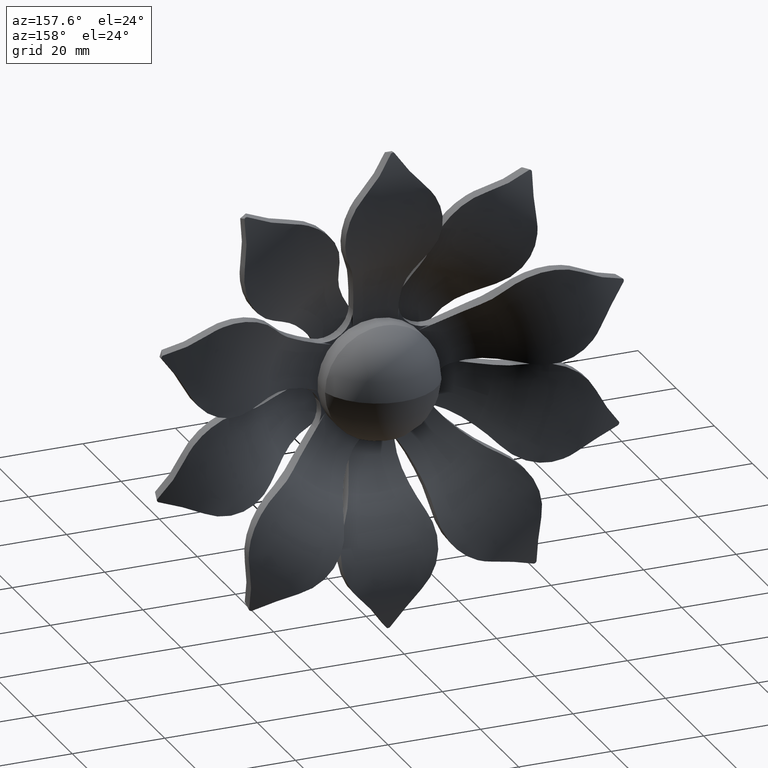
[diagram: clean part render]
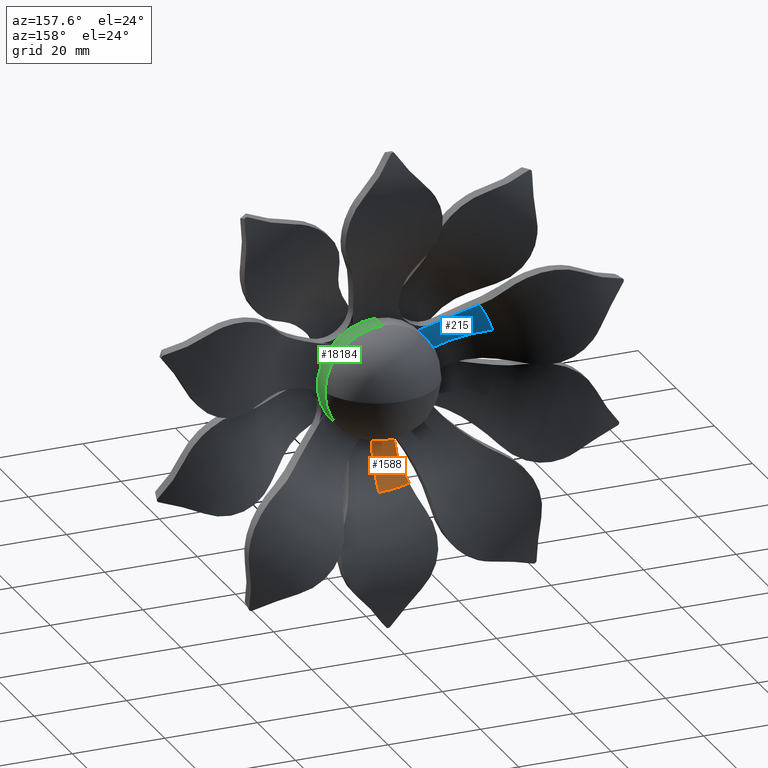
[diagram: same view with three faces highlighted in distinct colors, each labeled with its STEP entity id]
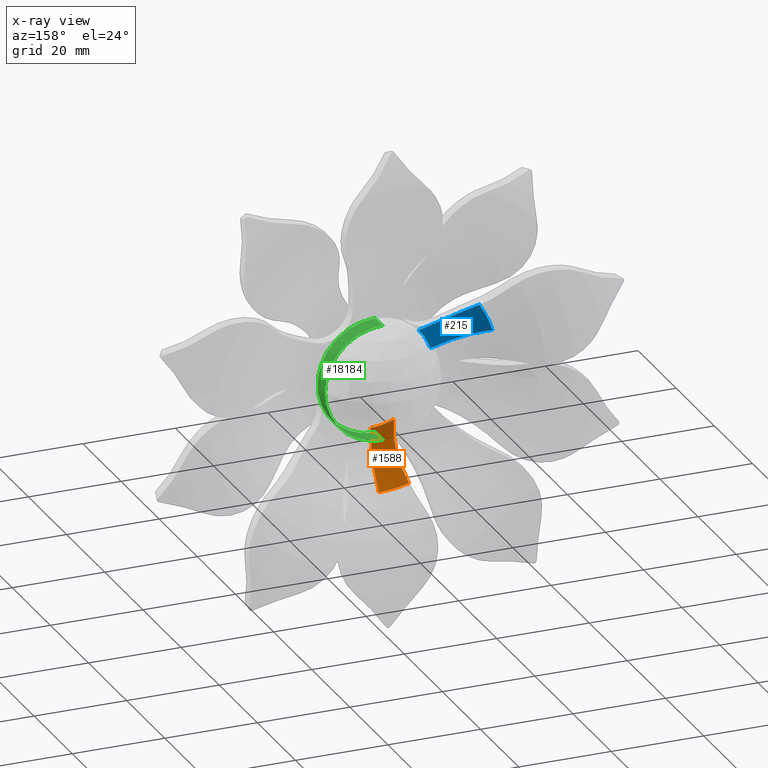
[diagram: x-ray of the same camera — body ghosted, the three highlighted faces saturated]
A machine part, auxiliary view with three faces highlighted in distinct colors.
The next image is the same camera in x-ray (body ghosted, the three faces saturated) — at least one of them is partly hidden behind the body in this view.
Their STEP definitions:

[orange] entity #1588 — the highlighted toroidal blend (fillet) surface has major radius 12.5 mm and minor (blend) radius 20 mm.
#3 = CARTESIAN_POINT ( 'NONE',  ( -4.911103334680630539, 2.701758379813187450, -15.18677292097259546 ) ) ;
#399 = DIRECTION ( 'NONE',  ( -0.000000000000000000, 1.000000000000000000, -0.000000000000000000 ) ) ;
#563 = VERTEX_POINT ( 'NONE', #10749 ) ;
#720 = DIRECTION ( 'NONE',  ( -0.000000000000000000, 1.000000000000000000, -0.000000000000000000 ) ) ;
#883 = CARTESIAN_POINT ( 'NONE',  ( 3.038777920609144218E-15, 6.639999999999997016, -24.81350478133662918 ) ) ;
#999 = CARTESIAN_POINT ( 'NONE',  ( 0.000000000000000000, 2.399999999999999467, 0.000000000000000000 ) ) ;
#1224 = CARTESIAN_POINT ( 'NONE',  ( -4.911756781227342827, 2.423084673537632128, -12.70974521857942108 ) ) ;
#1326 = EDGE_CURVE ( 'NONE', #13480, #563, #18292, .T. ) ;
#1588 = ADVANCED_FACE ( 'NONE', ( #18981 ), #8486, .F. ) ;
#1797 = EDGE_CURVE ( 'NONE', #10768, #15857, #8933, .T. ) ;
#1903 = CARTESIAN_POINT ( 'NONE',  ( -5.005182174680575358, 3.022617724912351367, -16.78765008031462003 ) ) ;
#2042 = B_SPLINE_CURVE_WITH_KNOTS ( 'NONE', 3,
 ( #10883, #16811, #6348, #7731, #3261, #9238, #16616, #1903, #9310, #9107 ),
 .UNSPECIFIED., .F., .F.,
 ( 4, 2, 2, 2, 4 ),
 ( 3.209145312509394975E-07, 0.004911106255757290498, 0.006138802591063802563, 0.007366498926370314629, 0.009821891596983347433 ),
 .UNSPECIFIED. ) ;
#3261 = CARTESIAN_POINT ( 'NONE',  ( -5.319688503122857348, 3.791603364436038515, -19.11510234346955883 ) ) ;
#3639 = AXIS2_PLACEMENT_3D ( 'NONE', #10609, #720, #18224 ) ;
#3730 = VERTEX_POINT ( 'NONE', #3 ) ;
#3844 = ORIENTED_EDGE ( 'NONE', *, *, #18356, .T. ) ;
#5596 = AXIS2_PLACEMENT_3D ( 'NONE', #6337, #399, #10870 ) ;
#6337 = CARTESIAN_POINT ( 'NONE',  ( 0.000000000000000000, 22.39999999999999858, 0.000000000000000000 ) ) ;
#6348 = CARTESIAN_POINT ( 'NONE',  ( -5.753159581806207790, 4.779073220137338929, -21.34060581880919472 ) ) ;
#7648 = ORIENTED_EDGE ( 'NONE', *, *, #1326, .F. ) ;
#7731 = CARTESIAN_POINT ( 'NONE',  ( -5.387375776556142526, 3.947264695546024882, -19.49360181070592901 ) ) ;
#8077 = B_SPLINE_CURVE_WITH_KNOTS ( 'NONE', 3,
 ( #17667, #16002, #12999, #1224, #10072, #17486 ),
 .UNSPECIFIED., .F., .F.,
 ( 4, 2, 4 ),
 ( 0.009821891596983347433, 0.01167983275379592262, 0.01353777391060849780 ),
 .UNSPECIFIED. ) ;
#8249 = AXIS2_PLACEMENT_3D ( 'NONE', #999, #11409, #14478 ) ;
#8486 = TOROIDAL_SURFACE ( 'NONE', #5596, 12.50000000000000000, 20.00000000000000000 ) ;
#8865 = DIRECTION ( 'NONE',  ( 1.224646799147353454E-16, 0.000000000000000000, -1.000000000000000000 ) ) ;
#8933 = CIRCLE ( 'NONE', #3639, 24.81350478133662918 ) ;
#9107 = CARTESIAN_POINT ( 'NONE',  ( -4.911103334680630539, 2.701758379813187450, -15.18677292097259546 ) ) ;
#9238 = CARTESIAN_POINT ( 'NONE',  ( -5.197944189174233287, 3.505085547573375315, -18.34695080249383281 ) ) ;
#9310 = CARTESIAN_POINT ( 'NONE',  ( -4.942098189964657884, 2.838296876270538505, -15.99345409425053788 ) ) ;
#9386 = ORIENTED_EDGE ( 'NONE', *, *, #18271, .T. ) ;
#9849 = CARTESIAN_POINT ( 'NONE',  ( -6.567353473104922124, 6.640000000000001457, -23.92864158059776969 ) ) ;
#9981 = AXIS2_PLACEMENT_3D ( 'NONE', #10578, #17854, #8865 ) ;
#10072 = CARTESIAN_POINT ( 'NONE',  ( -4.946019388681788698, 2.399999999999995914, -12.08216103413071174 ) ) ;
#10578 = CARTESIAN_POINT ( 'NONE',  ( 1.530808498934191521E-15, 22.39999999999999858, -12.50000000000000000 ) ) ;
#10609 = CARTESIAN_POINT ( 'NONE',  ( 0.000000000000000000, 6.639999999999997016, 0.000000000000000000 ) ) ;
#10749 = CARTESIAN_POINT ( 'NONE',  ( -4.999999999999994671, 2.399999999999999911, -11.45643923738959380 ) ) ;
#10768 = VERTEX_POINT ( 'NONE', #883 ) ;
#10870 = DIRECTION ( 'NONE',  ( 0.000000000000000000, 0.000000000000000000, 1.000000000000000000 ) ) ;
#10883 = CARTESIAN_POINT ( 'NONE',  ( -6.567353473104922124, 6.640000000000001457, -23.92864158059776969 ) ) ;
#11409 = DIRECTION ( 'NONE',  ( -0.000000000000000000, 1.000000000000000000, -0.000000000000000000 ) ) ;
#12808 = EDGE_CURVE ( 'NONE', #15857, #3730, #2042, .T. ) ;
#12999 = CARTESIAN_POINT ( 'NONE',  ( -4.882576289804482883, 2.522551089253362466, -13.95881423534150478 ) ) ;
#13247 = EDGE_LOOP ( 'NONE', ( #7648, #3844, #16984, #19312, #9386 ) ) ;
#13480 = VERTEX_POINT ( 'NONE', #17353 ) ;
#14478 = DIRECTION ( 'NONE',  ( 0.000000000000000000, 0.000000000000000000, 1.000000000000000000 ) ) ;
#15857 = VERTEX_POINT ( 'NONE', #9849 ) ;
#16002 = CARTESIAN_POINT ( 'NONE',  ( -4.887650215360499928, 2.598442728881441788, -14.57637517473970767 ) ) ;
#16616 = CARTESIAN_POINT ( 'NONE',  ( -5.144199173691119675, 3.374975286415087705, -17.95955191458172351 ) ) ;
#16811 = CARTESIAN_POINT ( 'NONE',  ( -6.135746329555230361, 5.619847176975611980, -22.69312618471508358 ) ) ;
#16984 = ORIENTED_EDGE ( 'NONE', *, *, #1797, .T. ) ;
#17353 = CARTESIAN_POINT ( 'NONE',  ( 2.284793209771668560E-15, 2.399999999999999467, -12.49999999999999822 ) ) ;
#17486 = CARTESIAN_POINT ( 'NONE',  ( -4.999999999999994671, 2.399999999999999911, -11.45643923738959380 ) ) ;
#17667 = CARTESIAN_POINT ( 'NONE',  ( -4.911103334680630539, 2.701758379813187450, -15.18677292097259546 ) ) ;
#17854 = DIRECTION ( 'NONE',  ( 1.000000000000000000, 0.000000000000000000, 1.224646799147353207E-16 ) ) ;
#18224 = DIRECTION ( 'NONE',  ( 0.000000000000000000, 0.000000000000000000, 1.000000000000000000 ) ) ;
#18271 = EDGE_CURVE ( 'NONE', #3730, #563, #8077, .T. ) ;
#18292 = CIRCLE ( 'NONE', #8249, 12.49999999999999645 ) ;
#18356 = EDGE_CURVE ( 'NONE', #13480, #10768, #18706, .T. ) ;
#18706 = CIRCLE ( 'NONE', #9981, 20.00000000000000000 ) ;
#18981 = FACE_OUTER_BOUND ( 'NONE', #13247, .T. ) ;
#19312 = ORIENTED_EDGE ( 'NONE', *, *, #12808, .T. ) ;

[blue] entity #215 — the highlighted toroidal blend (fillet) surface has major radius 12.5 mm and minor (blend) radius 20 mm.
#215 = ADVANCED_FACE ( 'NONE', ( #6854 ), #3630, .F. ) ;
#941 = VERTEX_POINT ( 'NONE', #11187 ) ;
#1308 = EDGE_CURVE ( 'NONE', #4872, #18852, #4058, .T. ) ;
#1324 = CARTESIAN_POINT ( 'NONE',  ( -7.347315653655857481, 2.399999999999999467, 10.11271242968688355 ) ) ;
#1974 = DIRECTION ( 'NONE',  ( 0.5877852522924685852, 0.000000000000000000, -0.8090169943749507819 ) ) ;
#2117 = AXIS2_PLACEMENT_3D ( 'NONE', #11330, #10022, #11398 ) ;
#2128 = EDGE_CURVE ( 'NONE', #4872, #17229, #4275, .T. ) ;
#2330 = CARTESIAN_POINT ( 'NONE',  ( -3.496906091626370561, 2.423084673537631240, 13.16945807485947917 ) ) ;
#3132 = CARTESIAN_POINT ( 'NONE',  ( -6.394615199206397982, 3.374975286415085041, 17.55326711940653439 ) ) ;
#3630 = TOROIDAL_SURFACE ( 'NONE', #7878, 12.50000000000000000, 20.00000000000000000 ) ;
#4058 = CIRCLE ( 'NONE', #4614, 20.00000000000000000 ) ;
#4076 = CARTESIAN_POINT ( 'NONE',  ( -3.100302331733181926, 2.399999999999995914, 12.68187085960633809 ) ) ;
#4275 = CIRCLE ( 'NONE', #8765, 12.49999999999999822 ) ;
#4295 = CARTESIAN_POINT ( 'NONE',  ( -8.374761846003679011, 5.619847176975614644, 21.96562594324989703 ) ) ;
#4614 = AXIS2_PLACEMENT_3D ( 'NONE', #5561, #10103, #5493 ) ;
#4800 = CARTESIAN_POINT ( 'NONE',  ( -5.402475026265959990, 2.838296876270534064, 15.84386859244683876 ) ) ;
#4861 = CARTESIAN_POINT ( 'NONE',  ( -5.818255698596239256, 3.022617724912348258, 16.52346647790891510 ) ) ;
#4872 = VERTEX_POINT ( 'NONE', #1324 ) ;
#5493 = DIRECTION ( 'NONE',  ( -0.5877852522924686962, 0.000000000000000000, 0.8090169943749506709 ) ) ;
#5561 = CARTESIAN_POINT ( 'NONE',  ( -7.347315653655858370, 22.39999999999999858, 10.11271242968688355 ) ) ;
#5891 = CARTESIAN_POINT ( 'NONE',  ( -8.751802060658475213, 6.640000000000001457, 23.21887120909347502 ) ) ;
#6352 = CARTESIAN_POINT ( 'NONE',  ( -7.889289502250576902, 4.779073220137338041, 20.64653513394438988 ) ) ;
#6854 = FACE_OUTER_BOUND ( 'NONE', #18097, .T. ) ;
#7064 = VERTEX_POINT ( 'NONE', #17895 ) ;
#7158 = CARTESIAN_POINT ( 'NONE',  ( -2.688841055647629652, 2.399999999999999911, 12.20738029953452397 ) ) ;
#7353 = B_SPLINE_CURVE_WITH_KNOTS ( 'NONE', 3,
 ( #17302, #16015, #9880, #2330, #4076, #12893 ),
 .UNSPECIFIED., .F., .F.,
 ( 4, 2, 4 ),
 ( 0.009821891596983364781, 0.01167983275379592956, 0.01353777391060849433 ),
 .UNSPECIFIED. ) ;
#7600 = CARTESIAN_POINT ( 'NONE',  ( -7.099573100076836063, 3.947264695546020885, 18.93727517645678304 ) ) ;
#7616 = B_SPLINE_CURVE_WITH_KNOTS ( 'NONE', 3,
 ( #5891, #4295, #6352, #7600, #12123, #10700, #3132, #4861, #4800, #18313 ),
 .UNSPECIFIED., .F., .F.,
 ( 4, 2, 2, 2, 4 ),
 ( 3.209145312487185771E-07, 0.004911106255757294835, 0.006138802591063812104, 0.007366498926370329374, 0.009821891596983364781 ),
 .UNSPECIFIED. ) ;
#7878 = AXIS2_PLACEMENT_3D ( 'NONE', #9070, #16449, #13510 ) ;
#7945 = DIRECTION ( 'NONE',  ( 0.000000000000000000, 1.000000000000000000, 0.000000000000000000 ) ) ;
#8407 = ORIENTED_EDGE ( 'NONE', *, *, #11774, .T. ) ;
#8765 = AXIS2_PLACEMENT_3D ( 'NONE', #15448, #7945, #1974 ) ;
#9070 = CARTESIAN_POINT ( 'NONE',  ( 0.000000000000000000, 22.39999999999999858, 0.000000000000000000 ) ) ;
#9880 = CARTESIAN_POINT ( 'NONE',  ( -4.254697952239882675, 2.522551089253360690, 14.16282427405420918 ) ) ;
#10022 = DIRECTION ( 'NONE',  ( 0.000000000000000000, 1.000000000000000000, 0.000000000000000000 ) ) ;
#10103 = DIRECTION ( 'NONE',  ( -0.8090169943749506709, 0.000000000000000000, -0.5877852522924686962 ) ) ;
#10402 = EDGE_CURVE ( 'NONE', #7064, #17229, #7353, .T. ) ;
#10700 = CARTESIAN_POINT ( 'NONE',  ( -6.578841921386860747, 3.505085547573374427, 17.89826993081458895 ) ) ;
#11187 = CARTESIAN_POINT ( 'NONE',  ( -8.751802060658475213, 6.640000000000001457, 23.21887120909347502 ) ) ;
#11330 = CARTESIAN_POINT ( 'NONE',  ( 0.000000000000000000, 6.639999999999997016, 0.000000000000000000 ) ) ;
#11398 = DIRECTION ( 'NONE',  ( 0.5877852522924685852, 0.000000000000000000, -0.8090169943749506709 ) ) ;
#11774 = EDGE_CURVE ( 'NONE', #18852, #941, #13199, .T. ) ;
#12123 = CARTESIAN_POINT ( 'NONE',  ( -6.931856849745174465, 3.791603364436037626, 18.59127709400872419 ) ) ;
#12893 = CARTESIAN_POINT ( 'NONE',  ( -2.688841055647629652, 2.399999999999999911, 12.20738029953452397 ) ) ;
#13199 = CIRCLE ( 'NONE', #2117, 24.81350478133662918 ) ;
#13510 = DIRECTION ( 'NONE',  ( 0.5877852522924685852, 0.000000000000000000, -0.8090169943749507819 ) ) ;
#14865 = ORIENTED_EDGE ( 'NONE', *, *, #1308, .T. ) ;
#15374 = CARTESIAN_POINT ( 'NONE',  ( -14.58501216815832535, 6.639999999999997016, 20.07454705810542706 ) ) ;
#15448 = CARTESIAN_POINT ( 'NONE',  ( 0.000000000000000000, 2.399999999999999467, 0.000000000000000000 ) ) ;
#16015 = CARTESIAN_POINT ( 'NONE',  ( -4.613586272807006949, 2.598442728881438235, 14.66542394770256408 ) ) ;
#16119 = ORIENTED_EDGE ( 'NONE', *, *, #2128, .F. ) ;
#16188 = EDGE_CURVE ( 'NONE', #941, #7064, #7616, .T. ) ;
#16449 = DIRECTION ( 'NONE',  ( 0.000000000000000000, 1.000000000000000000, 0.000000000000000000 ) ) ;
#17229 = VERTEX_POINT ( 'NONE', #7158 ) ;
#17302 = CARTESIAN_POINT ( 'NONE',  ( -4.953395093974174657, 2.701758379813182120, 15.17303149538976470 ) ) ;
#17895 = CARTESIAN_POINT ( 'NONE',  ( -4.953395093974174657, 2.701758379813182120, 15.17303149538976470 ) ) ;
#18097 = EDGE_LOOP ( 'NONE', ( #16119, #14865, #8407, #19168, #18467 ) ) ;
#18313 = CARTESIAN_POINT ( 'NONE',  ( -4.953395093974174657, 2.701758379813182120, 15.17303149538976470 ) ) ;
#18467 = ORIENTED_EDGE ( 'NONE', *, *, #10402, .T. ) ;
#18852 = VERTEX_POINT ( 'NONE', #15374 ) ;
#19168 = ORIENTED_EDGE ( 'NONE', *, *, #16188, .T. ) ;

[green] entity #18184 — the highlighted cylindrical surface (partial cylindrical patch) has radius 12.5 mm, axis along (-0, -1, -0).
#1278 = EDGE_CURVE ( 'NONE', #18933, #9755, #14338, .T. ) ;
#1475 = EDGE_CURVE ( 'NONE', #1533, #18933, #10364, .T. ) ;
#1533 = VERTEX_POINT ( 'NONE', #18094 ) ;
#1671 = CARTESIAN_POINT ( 'NONE',  ( 0.000000000000000000, 0.000000000000000000, 0.000000000000000000 ) ) ;
#1908 = ORIENTED_EDGE ( 'NONE', *, *, #4438, .T. ) ;
#1965 = VERTEX_POINT ( 'NONE', #14367 ) ;
#2278 = VERTEX_POINT ( 'NONE', #17952 ) ;
#2315 = CARTESIAN_POINT ( 'NONE',  ( 0.000000000000000000, 0.000000000000000000, 0.000000000000000000 ) ) ;
#2608 = ORIENTED_EDGE ( 'NONE', *, *, #17793, .F. ) ;
#2625 = CYLINDRICAL_SURFACE ( 'NONE', #4230, 12.50000000000000000 ) ;
#3650 = DIRECTION ( 'NONE',  ( -0.000000000000000000, -1.000000000000000000, -0.000000000000000000 ) ) ;
#4008 = AXIS2_PLACEMENT_3D ( 'NONE', #8524, #12848, #6812 ) ;
#4230 = AXIS2_PLACEMENT_3D ( 'NONE', #2315, #12747, #6911 ) ;
#4438 = EDGE_CURVE ( 'NONE', #9755, #1965, #6312, .T. ) ;
#5975 = DIRECTION ( 'NONE',  ( -0.000000000000000000, -1.000000000000000000, -0.000000000000000000 ) ) ;
#6312 = LINE ( 'NONE', #15581, #8434 ) ;
#6812 = DIRECTION ( 'NONE',  ( 0.000000000000000000, 0.000000000000000000, -1.000000000000000000 ) ) ;
#6911 = DIRECTION ( 'NONE',  ( 0.000000000000000000, 0.000000000000000000, -1.000000000000000000 ) ) ;
#7723 = ORIENTED_EDGE ( 'NONE', *, *, #1278, .T. ) ;
#7761 = DIRECTION ( 'NONE',  ( 0.000000000000000000, 0.000000000000000000, -1.000000000000000000 ) ) ;
#7909 = EDGE_CURVE ( 'NONE', #1533, #2278, #10007, .T. ) ;
#8434 = VECTOR ( 'NONE', #19222, 1000.000000000000000 ) ;
#8524 = CARTESIAN_POINT ( 'NONE',  ( 0.000000000000000000, 4.000000000000002665, 0.000000000000000000 ) ) ;
#9456 = CARTESIAN_POINT ( 'NONE',  ( 1.530808498934191521E-15, 4.000000000000002665, 12.50000000000000000 ) ) ;
#9538 = VECTOR ( 'NONE', #3650, 1000.000000000000000 ) ;
#9755 = VERTEX_POINT ( 'NONE', #9456 ) ;
#10007 = LINE ( 'NONE', #12594, #9538 ) ;
#10364 = CIRCLE ( 'NONE', #11013, 12.50000000000000000 ) ;
#10486 = DIRECTION ( 'NONE',  ( 0.000000000000000000, 0.000000000000000000, -1.000000000000000000 ) ) ;
#10752 = DIRECTION ( 'NONE',  ( -0.000000000000000000, -1.000000000000000000, -0.000000000000000000 ) ) ;
#11013 = AXIS2_PLACEMENT_3D ( 'NONE', #13599, #10752, #10486 ) ;
#12594 = CARTESIAN_POINT ( 'NONE',  ( 0.000000000000000000, 0.000000000000000000, -12.50000000000000000 ) ) ;
#12747 = DIRECTION ( 'NONE',  ( -0.000000000000000000, -1.000000000000000000, -0.000000000000000000 ) ) ;
#12848 = DIRECTION ( 'NONE',  ( -0.000000000000000000, -1.000000000000000000, -0.000000000000000000 ) ) ;
#13574 = CIRCLE ( 'NONE', #18602, 12.50000000000000000 ) ;
#13599 = CARTESIAN_POINT ( 'NONE',  ( 0.000000000000000000, 4.000000000000002665, 0.000000000000000000 ) ) ;
#14338 = CIRCLE ( 'NONE', #4008, 12.50000000000000000 ) ;
#14367 = CARTESIAN_POINT ( 'NONE',  ( 1.530808498934191521E-15, 0.000000000000000000, 12.50000000000000000 ) ) ;
#15006 = ORIENTED_EDGE ( 'NONE', *, *, #1475, .T. ) ;
#15202 = FACE_OUTER_BOUND ( 'NONE', #17418, .T. ) ;
#15581 = CARTESIAN_POINT ( 'NONE',  ( 1.530808498934191521E-15, 0.000000000000000000, 12.50000000000000000 ) ) ;
#15819 = CARTESIAN_POINT ( 'NONE',  ( 12.50000000000000000, 4.000000000000002665, 0.000000000000000000 ) ) ;
#17054 = ORIENTED_EDGE ( 'NONE', *, *, #7909, .F. ) ;
#17418 = EDGE_LOOP ( 'NONE', ( #7723, #1908, #2608, #17054, #15006 ) ) ;
#17793 = EDGE_CURVE ( 'NONE', #2278, #1965, #13574, .T. ) ;
#17952 = CARTESIAN_POINT ( 'NONE',  ( 0.000000000000000000, 0.000000000000000000, -12.50000000000000000 ) ) ;
#18094 = CARTESIAN_POINT ( 'NONE',  ( 0.000000000000000000, 4.000000000000002665, -12.50000000000000000 ) ) ;
#18184 = ADVANCED_FACE ( 'NONE', ( #15202 ), #2625, .T. ) ;
#18602 = AXIS2_PLACEMENT_3D ( 'NONE', #1671, #5975, #7761 ) ;
#18933 = VERTEX_POINT ( 'NONE', #15819 ) ;
#19222 = DIRECTION ( 'NONE',  ( -0.000000000000000000, -1.000000000000000000, -0.000000000000000000 ) ) ;